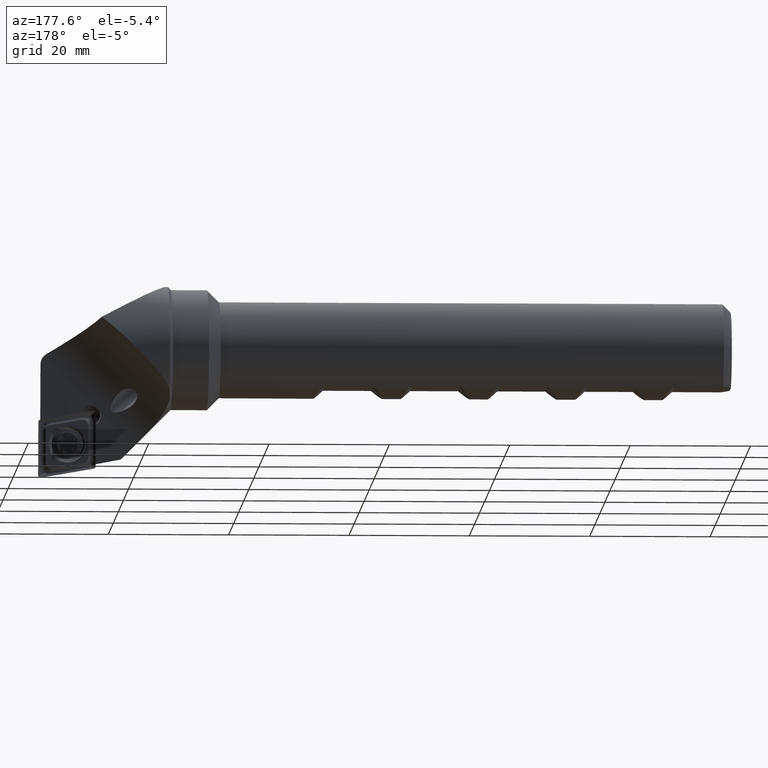
[diagram: clean part render]
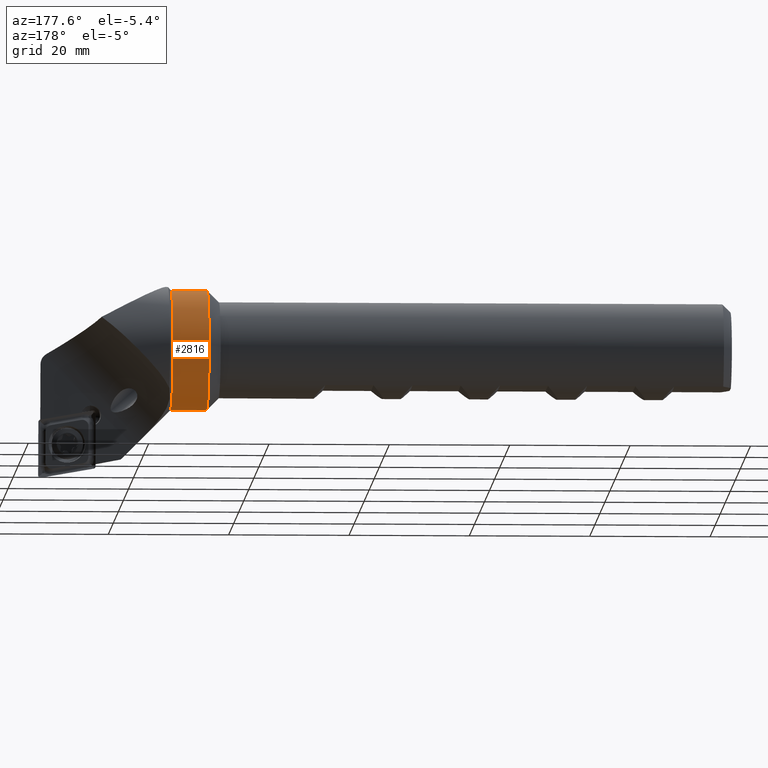
[diagram: same view with one face highlighted and labeled with its STEP entity id]
A machine part, auxiliary view. The second image highlights one B-rep face of the part: STEP entity #2816.
In plain terms, the highlighted cylindrical surface (bore or boss wall) has radius 10 mm, axis along (-1, -0, -0).
Its self-contained STEP definition (entity closure, byte-faithful):
#49 = CIRCLE ( 'NONE', #117, 10.00000000000000000 ) ;
#117 = AXIS2_PLACEMENT_3D ( 'NONE', #1214, #3331, #1548 ) ;
#222 = EDGE_LOOP ( 'NONE', ( #3031 ) ) ;
#418 = AXIS2_PLACEMENT_3D ( 'NONE', #601, #2085, #2665 ) ;
#427 = EDGE_LOOP ( 'NONE', ( #492 ) ) ;
#492 = ORIENTED_EDGE ( 'NONE', *, *, #1580, .F. ) ;
#601 = CARTESIAN_POINT ( 'NONE',  ( 87.00000000000000000, 0.0000000000000000000, 0.0000000000000000000 ) ) ;
#894 = CARTESIAN_POINT ( 'NONE',  ( 87.00000000000000000, 0.0000000000000000000, 10.00000000000000000 ) ) ;
#951 = VERTEX_POINT ( 'NONE', #894 ) ;
#1002 = FACE_OUTER_BOUND ( 'NONE', #427, .T. ) ;
#1214 = CARTESIAN_POINT ( 'NONE',  ( 93.00000000000000000, 0.0000000000000000000, 0.0000000000000000000 ) ) ;
#1443 = DIRECTION ( 'NONE',  ( -1.000000000000000000, -0.0000000000000000000, -0.0000000000000000000 ) ) ;
#1548 = DIRECTION ( 'NONE',  ( 0.0000000000000000000, 0.0000000000000000000, 1.000000000000000000 ) ) ;
#1580 = EDGE_CURVE ( 'NONE', #951, #951, #3389, .T. ) ;
#1691 = EDGE_CURVE ( 'NONE', #2418, #2418, #49, .T. ) ;
#2014 = CARTESIAN_POINT ( 'NONE',  ( -3.175455607189903200, 0.0000000000000000000, 0.0000000000000000000 ) ) ;
#2085 = DIRECTION ( 'NONE',  ( -1.000000000000000000, -0.0000000000000000000, -0.0000000000000000000 ) ) ;
#2098 = CARTESIAN_POINT ( 'NONE',  ( 93.00000000000000000, 0.0000000000000000000, 10.00000000000000000 ) ) ;
#2159 = CYLINDRICAL_SURFACE ( 'NONE', #3581, 10.00000000000000000 ) ;
#2351 = DIRECTION ( 'NONE',  ( 0.0000000000000000000, 0.0000000000000000000, 1.000000000000000000 ) ) ;
#2418 = VERTEX_POINT ( 'NONE', #2098 ) ;
#2665 = DIRECTION ( 'NONE',  ( 0.0000000000000000000, 0.0000000000000000000, 1.000000000000000000 ) ) ;
#2816 = ADVANCED_FACE ( 'NONE', ( #1002, #3773 ), #2159, .T. ) ;
#3031 = ORIENTED_EDGE ( 'NONE', *, *, #1691, .T. ) ;
#3331 = DIRECTION ( 'NONE',  ( -1.000000000000000000, -0.0000000000000000000, -0.0000000000000000000 ) ) ;
#3389 = CIRCLE ( 'NONE', #418, 10.00000000000000000 ) ;
#3581 = AXIS2_PLACEMENT_3D ( 'NONE', #2014, #1443, #2351 ) ;
#3773 = FACE_OUTER_BOUND ( 'NONE', #222, .T. ) ;